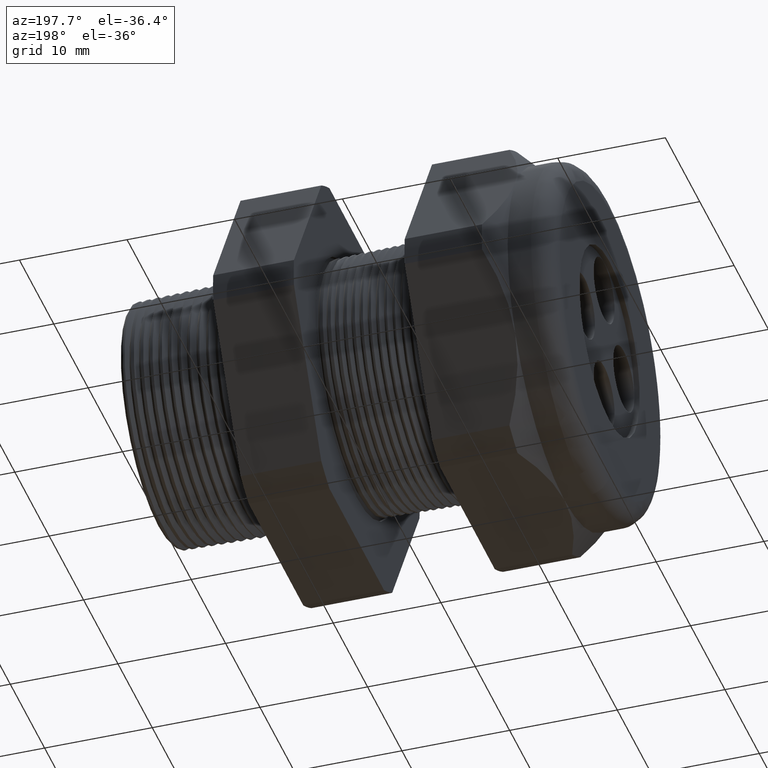
[diagram: clean part render]
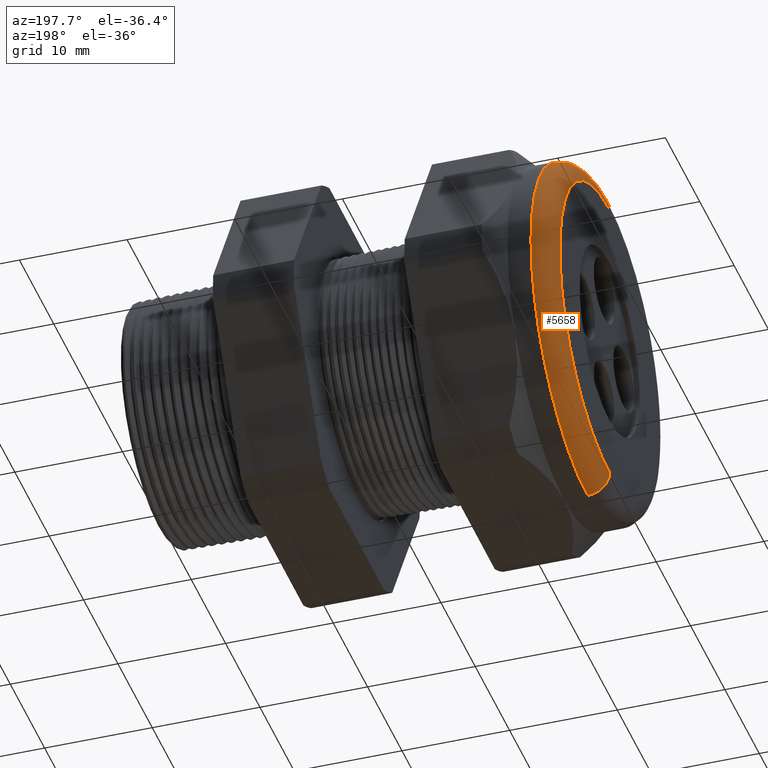
[diagram: same view with one face highlighted and labeled with its STEP entity id]
A machine part, auxiliary view. The second image highlights one B-rep face of the part: STEP entity #5658.
In plain terms, the highlighted toroidal blend (fillet) surface has major radius 14.478 mm and minor (blend) radius 2.032 mm.
Its self-contained STEP definition (entity closure, byte-faithful):
#4452 = CARTESIAN_POINT ( 'NONE',  ( -1.529999999999999800, 0.0000000000000000000, 0.5699999999999999500 ) ) ;
#4504 = DIRECTION ( 'NONE',  ( 0.0000000000000000000, 0.0000000000000000000, -1.000000000000000000 ) ) ;
#4505 = DIRECTION ( 'NONE',  ( 0.0000000000000000000, -1.000000000000000000, 0.0000000000000000000 ) ) ;
#4506 = CARTESIAN_POINT ( 'NONE',  ( -1.449999999999999700, 0.0000000000000000000, 0.5699999999999999500 ) ) ;
#4507 = AXIS2_PLACEMENT_3D ( 'NONE', #4506, #4505, #4504 ) ;
#4508 = CIRCLE ( 'NONE', #4507, 0.07999999999999996000 ) ;
#4509 = DIRECTION ( 'NONE',  ( 0.0000000000000000000, 0.0000000000000000000, 1.000000000000000000 ) ) ;
#4510 = DIRECTION ( 'NONE',  ( -1.000000000000000000, 0.0000000000000000000, 0.0000000000000000000 ) ) ;
#4511 = CARTESIAN_POINT ( 'NONE',  ( -1.529999999999999800, 0.0000000000000000000, 0.0000000000000000000 ) ) ;
#4512 = AXIS2_PLACEMENT_3D ( 'NONE', #4511, #4510, #4509 ) ;
#4513 = CIRCLE ( 'NONE', #4512, 0.5699999999999999500 ) ;
#4520 = CARTESIAN_POINT ( 'NONE',  ( -1.529999999999999800, 7.470345474798854000E-017, -0.5699999999999999500 ) ) ;
#4521 = DIRECTION ( 'NONE',  ( 0.0000000000000000000, -1.224646799147353900E-016, 1.000000000000000000 ) ) ;
#4522 = DIRECTION ( 'NONE',  ( 0.0000000000000000000, 1.000000000000000000, 1.224646799147353200E-016 ) ) ;
#4523 = CARTESIAN_POINT ( 'NONE',  ( -1.449999999999999700, 6.980486755139912600E-017, -0.5699999999999999500 ) ) ;
#4524 = AXIS2_PLACEMENT_3D ( 'NONE', #4523, #4522, #4521 ) ;
#4525 = CIRCLE ( 'NONE', #4524, 0.07999999999999996000 ) ;
#4526 = CARTESIAN_POINT ( 'NONE',  ( -1.449999999999999700, 7.960204194457794200E-017, 0.6499999999999999100 ) ) ;
#4527 = CARTESIAN_POINT ( 'NONE',  ( -1.449999999999999700, 0.0000000000000000000, -0.6499999999999999100 ) ) ;
#4528 = DIRECTION ( 'NONE',  ( 0.0000000000000000000, 0.0000000000000000000, 1.000000000000000000 ) ) ;
#4529 = DIRECTION ( 'NONE',  ( 1.000000000000000000, 0.0000000000000000000, 0.0000000000000000000 ) ) ;
#4530 = CARTESIAN_POINT ( 'NONE',  ( -1.449999999999999700, 0.0000000000000000000, 0.0000000000000000000 ) ) ;
#4531 = AXIS2_PLACEMENT_3D ( 'NONE', #4530, #4529, #4528 ) ;
#4532 = CIRCLE ( 'NONE', #4531, 0.6499999999999999100 ) ;
#4533 = DIRECTION ( 'NONE',  ( 0.0000000000000000000, 0.0000000000000000000, 1.000000000000000000 ) ) ;
#4534 = DIRECTION ( 'NONE',  ( -1.000000000000000000, 0.0000000000000000000, 0.0000000000000000000 ) ) ;
#4535 = AXIS2_PLACEMENT_3D ( 'NONE', #4537, #4534, #4533 ) ;
#4536 = TOROIDAL_SURFACE ( 'NONE', #4535, 0.5699999999999999500, 0.08000000000000000200 ) ;
#4537 = CARTESIAN_POINT ( 'NONE',  ( -1.449999999999999700, 0.0000000000000000000, 0.0000000000000000000 ) ) ;
#4538 = FACE_OUTER_BOUND ( 'NONE', #5659, .T. ) ;
#5640 = ORIENTED_EDGE ( 'NONE', *, *, #5641, .F. ) ;
#5641 = EDGE_CURVE ( 'NONE', #5642, #5666, #4513, .T. ) ;
#5642 = VERTEX_POINT ( 'NONE', #4452 ) ;
#5643 = ORIENTED_EDGE ( 'NONE', *, *, #5644, .F. ) ;
#5644 = EDGE_CURVE ( 'NONE', #5663, #5642, #4508, .T. ) ;
#5658 = ADVANCED_FACE ( 'NONE', ( #4538 ), #4536, .T. ) ;
#5659 = EDGE_LOOP ( 'NONE', ( #5660, #5664, #5640, #5643 ) ) ;
#5660 = ORIENTED_EDGE ( 'NONE', *, *, #5661, .F. ) ;
#5661 = EDGE_CURVE ( 'NONE', #5662, #5663, #4532, .T. ) ;
#5662 = VERTEX_POINT ( 'NONE', #4527 ) ;
#5663 = VERTEX_POINT ( 'NONE', #4526 ) ;
#5664 = ORIENTED_EDGE ( 'NONE', *, *, #5665, .T. ) ;
#5665 = EDGE_CURVE ( 'NONE', #5662, #5666, #4525, .T. ) ;
#5666 = VERTEX_POINT ( 'NONE', #4520 ) ;